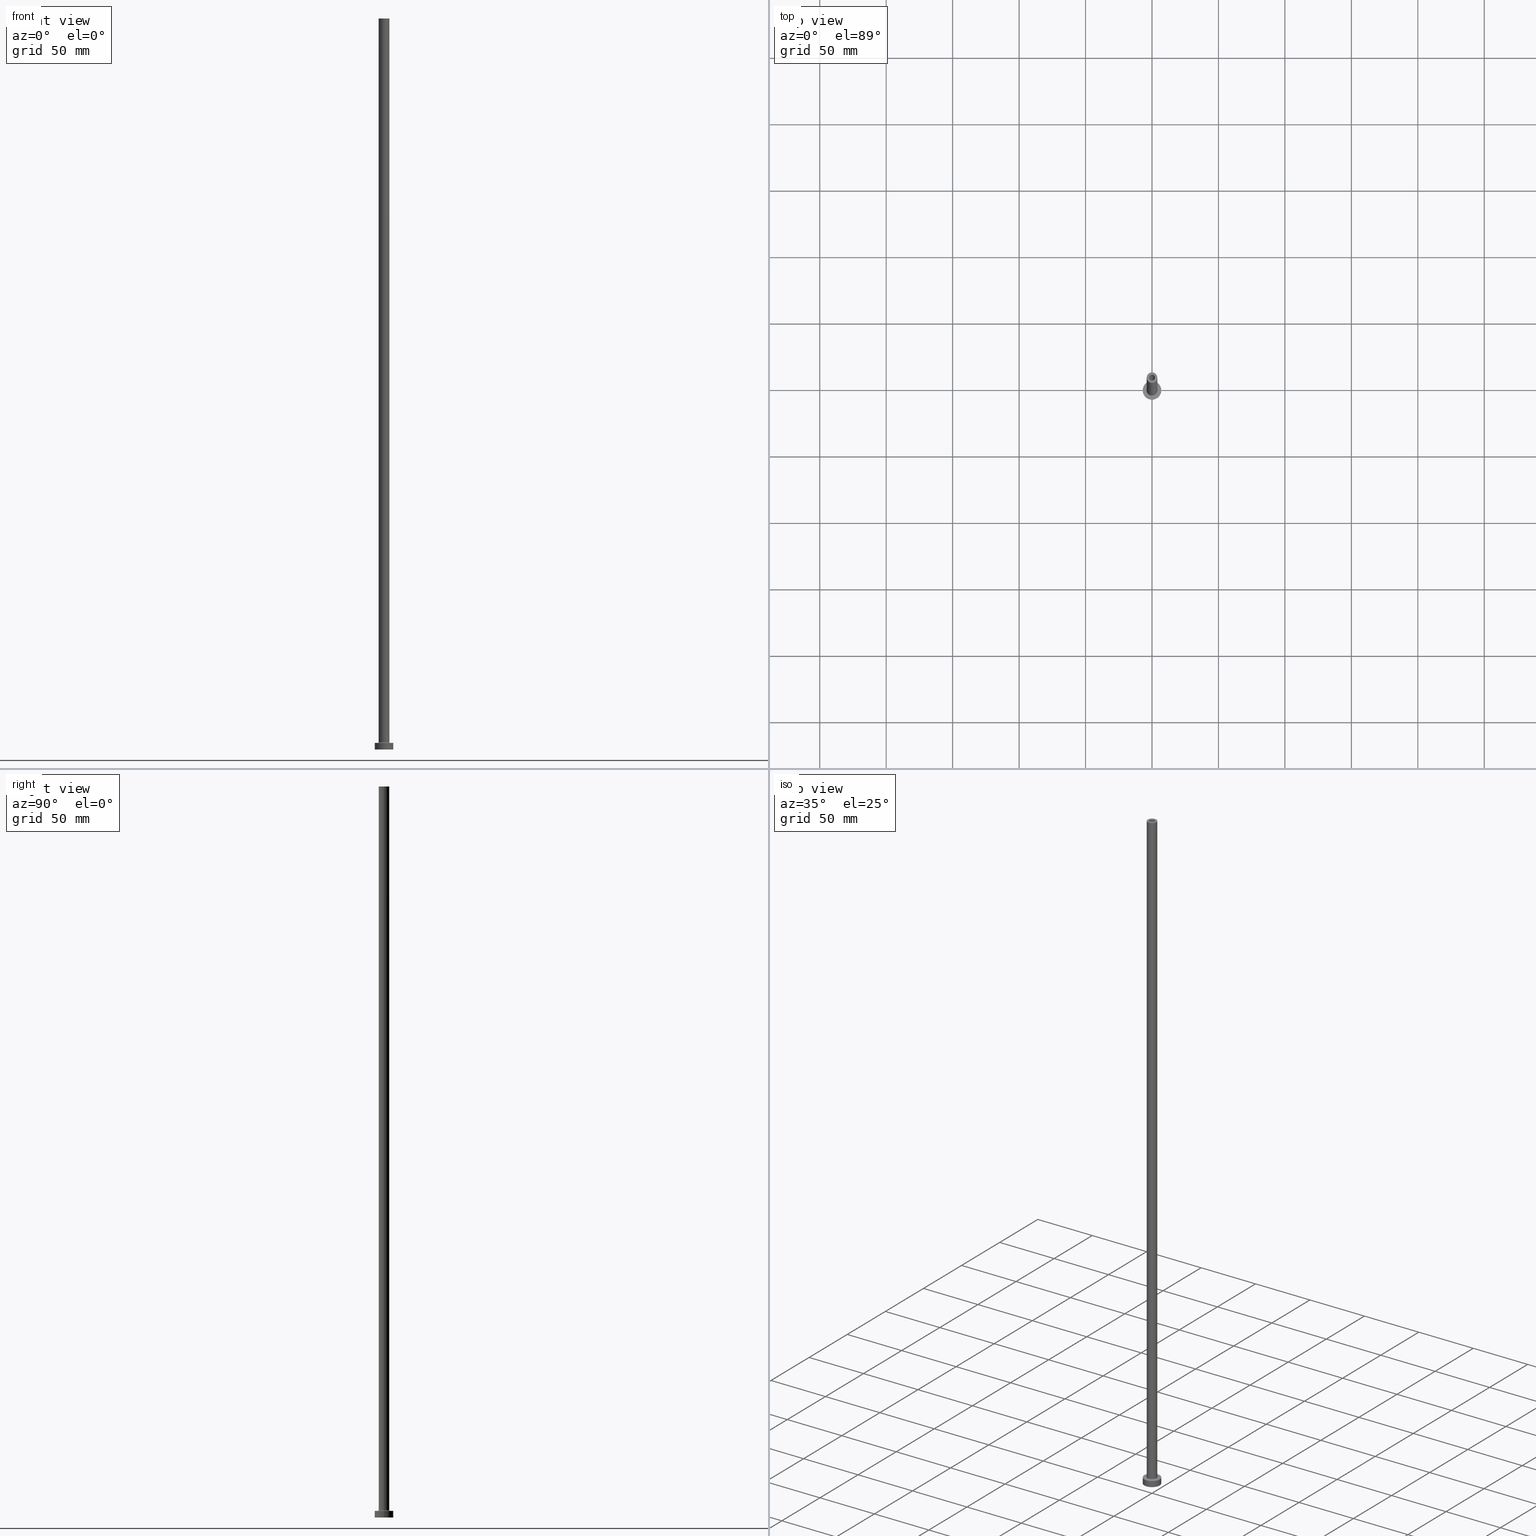
[diagram: canonical four-view strip — front | top / right | iso, engineering-drawing reading convention]
A machine part, canonical four-view strip (front | top / right | iso — engineering-drawing reading convention). The complete STEP part file that produces these views, byte-faithful:
ISO-10303-21;
HEADER;
FILE_DESCRIPTION (( 'STEP AP203' ),
    '1' );
FILE_NAME ('aa1b.STEP',
    '2023-02-13T17:20:26',
    ( '' ),
    ( '' ),
    'SwSTEP 2.0',
    'SolidWorks 2019',
    '' );
FILE_SCHEMA (( 'CONFIG_CONTROL_DESIGN' ));
ENDSEC;

DATA;
#1 = FACE_OUTER_BOUND ( 'NONE', #264, .T. ) ;
#2 = DATE_AND_TIME ( #321, #82 ) ;
#3 = DATE_AND_TIME ( #352, #405 ) ;
#4 = CARTESIAN_POINT ( 'NONE',  ( 0.000000000000000000, 0.000000000000000000, 550.0000000000000000 ) ) ;
#5 = CIRCLE ( 'NONE', #260, 4.500000000000000888 ) ;
#6 = CARTESIAN_POINT ( 'NONE',  ( 4.000000000000000000, 4.898587196589412829E-16, 550.0000000000000000 ) ) ;
#7 = EDGE_CURVE ( 'NONE', #402, #297, #342, .T. ) ;
#8 = PERSON_AND_ORGANIZATION_ROLE ( 'creator' ) ;
#9 = DIRECTION ( 'NONE',  ( -0.000000000000000000, -0.000000000000000000, -1.000000000000000000 ) ) ;
#10 = VERTEX_POINT ( 'NONE', #308 ) ;
#11 = DIRECTION ( 'NONE',  ( -1.000000000000000000, 0.000000000000000000, 0.000000000000000000 ) ) ;
#12 = AXIS2_PLACEMENT_3D ( 'NONE', #255, #399, #75 ) ;
#13 = ORIENTED_EDGE ( 'NONE', *, *, #57, .T. ) ;
#14 = AXIS2_PLACEMENT_3D ( 'NONE', #240, #304, #202 ) ;
#15 = CC_DESIGN_PERSON_AND_ORGANIZATION_ASSIGNMENT ( #214, #8, ( #66 ) ) ;
#16 = CYLINDRICAL_SURFACE ( 'NONE', #445, 2.250000000000000000 ) ;
#17 = VERTEX_POINT ( 'NONE', #58 ) ;
#18 = DIRECTION ( 'NONE',  ( 0.000000000000000000, 0.000000000000000000, 1.000000000000000000 ) ) ;
#19 = ORIENTED_EDGE ( 'NONE', *, *, #245, .F. ) ;
#20 = CARTESIAN_POINT ( 'NONE',  ( 2.399999999999999911, 2.939152317953647106E-16, 0.000000000000000000 ) ) ;
#21 = AXIS2_PLACEMENT_3D ( 'NONE', #162, #158, #408 ) ;
#22 = ORIENTED_EDGE ( 'NONE', *, *, #205, .F. ) ;
#23 = CC_DESIGN_DATE_AND_TIME_ASSIGNMENT ( #197, #381, ( #441 ) ) ;
#24 = ADVANCED_FACE ( 'NONE', ( #384 ), #63, .T. ) ;
#25 = ORIENTED_EDGE ( 'NONE', *, *, #375, .F. ) ;
#26 = ORIENTED_EDGE ( 'NONE', *, *, #102, .T. ) ;
#27 = CIRCLE ( 'NONE', #332, 2.399999999999999911 ) ;
#28 = CARTESIAN_POINT ( 'NONE',  ( 0.000000000000000000, 0.000000000000000000, 0.000000000000000000 ) ) ;
#29 = ORIENTED_EDGE ( 'NONE', *, *, #233, .F. ) ;
#30 = DIRECTION ( 'NONE',  ( -1.000000000000000000, 0.000000000000000000, 0.000000000000000000 ) ) ;
#31 = CC_DESIGN_SECURITY_CLASSIFICATION ( #441, ( #413 ) ) ;
#32 = AXIS2_PLACEMENT_3D ( 'NONE', #196, #203, #272 ) ;
#33 = COORDINATED_UNIVERSAL_TIME_OFFSET ( 1, 0, .AHEAD. ) ;
#34 = DESIGN_CONTEXT ( 'detailed design', #239, 'design' ) ;
#35 = CARTESIAN_POINT ( 'NONE',  ( -4.000000000000000000, 0.000000000000000000, 5.499999999999949374 ) ) ;
#36 = DIRECTION ( 'NONE',  ( -0.000000000000000000, -0.000000000000000000, -1.000000000000000000 ) ) ;
#37 = CC_DESIGN_APPROVAL ( #438, ( #413 ) ) ;
#38 = AXIS2_PLACEMENT_3D ( 'NONE', #133, #425, #135 ) ;
#39 = DIRECTION ( 'NONE',  ( 0.000000000000000000, 0.000000000000000000, -1.000000000000000000 ) ) ;
#40 = LINE ( 'NONE', #6, #418 ) ;
#41 = CARTESIAN_POINT ( 'NONE',  ( 7.000000000000000000, 8.572527594031473190E-16, 5.000000000000000000 ) ) ;
#42 = DIRECTION ( 'NONE',  ( -1.000000000000000000, 0.000000000000000000, 0.000000000000000000 ) ) ;
#43 = ORIENTED_EDGE ( 'NONE', *, *, #372, .T. ) ;
#44 = DIRECTION ( 'NONE',  ( 1.000000000000000000, 0.000000000000000000, 0.000000000000000000 ) ) ;
#45 = VERTEX_POINT ( 'NONE', #347 ) ;
#46 = CIRCLE ( 'NONE', #301, 2.250000000000000000 ) ;
#47 = CARTESIAN_POINT ( 'NONE',  ( -7.000000000000000000, 0.000000000000000000, 5.000000000000000000 ) ) ;
#48 = ORIENTED_EDGE ( 'NONE', *, *, #328, .F. ) ;
#49 = DIRECTION ( 'NONE',  ( 1.000000000000000000, 0.000000000000000000, 0.000000000000000000 ) ) ;
#50 = EDGE_CURVE ( 'NONE', #374, #315, #266, .T. ) ;
#51 = EDGE_LOOP ( 'NONE', ( #219, #194 ) ) ;
#52 = CIRCLE ( 'NONE', #167, 7.000000000000000000 ) ;
#53 = ADVANCED_FACE ( 'NONE', ( #175, #1 ), #288, .F. ) ;
#54 = FACE_BOUND ( 'NONE', #51, .T. ) ;
#55 = EDGE_LOOP ( 'NONE', ( #60, #407, #154, #400 ) ) ;
#56 = DIRECTION ( 'NONE',  ( 0.000000000000000000, 0.000000000000000000, 1.000000000000000000 ) ) ;
#57 = EDGE_CURVE ( 'NONE', #112, #315, #104, .T. ) ;
#58 = CARTESIAN_POINT ( 'NONE',  ( 4.500000000000000888, 0.000000000000000000, 4.999999999999975131 ) ) ;
#59 = PLANE ( 'NONE',  #21 ) ;
#60 = ORIENTED_EDGE ( 'NONE', *, *, #7, .F. ) ;
#61 = PERSON_AND_ORGANIZATION ( #89, #215 ) ;
#62 = CARTESIAN_POINT ( 'NONE',  ( -2.399999999999999911, 0.000000000000000000, 0.000000000000000000 ) ) ;
#63 = CYLINDRICAL_SURFACE ( 'NONE', #32, 7.000000000000000000 ) ;
#64 = EDGE_CURVE ( 'NONE', #455, #93, #341, .T. ) ;
#65 = DIRECTION ( 'NONE',  ( 1.000000000000000000, 0.000000000000000000, 0.000000000000000000 ) ) ;
#66 = PRODUCT_DEFINITION ( 'NEZN�M�', '', #413, #34 ) ;
#67 = CARTESIAN_POINT ( 'NONE',  ( 0.000000000000000000, 0.000000000000000000, 5.499999999999949374 ) ) ;
#68 = AXIS2_PLACEMENT_3D ( 'NONE', #118, #155, #30 ) ;
#69 = CYLINDRICAL_SURFACE ( 'NONE', #165, 2.250000000000000000 ) ;
#70 = APPROVAL_ROLE ( '' ) ;
#71 = ADVANCED_FACE ( 'NONE', ( #317 ), #393, .F. ) ;
#72 = CARTESIAN_POINT ( 'NONE',  ( 4.000000000000000000, 4.898587196589412829E-16, 550.0000000000000000 ) ) ;
#73 = CIRCLE ( 'NONE', #188, 7.000000000000000000 ) ;
#74 = DIRECTION ( 'NONE',  ( 0.000000000000000000, 0.000000000000000000, 1.000000000000000000 ) ) ;
#75 = DIRECTION ( 'NONE',  ( -1.000000000000000000, 1.224646799147351482E-16, 0.000000000000000000 ) ) ;
#76 = DIRECTION ( 'NONE',  ( 1.000000000000000000, 0.000000000000000000, 0.000000000000000000 ) ) ;
#77 = DIRECTION ( 'NONE',  ( 0.000000000000000000, 0.000000000000000000, 1.000000000000000000 ) ) ;
#78 = EDGE_CURVE ( 'NONE', #340, #98, #319, .T. ) ;
#79 = ORIENTED_EDGE ( 'NONE', *, *, #262, .T. ) ;
#80 = CARTESIAN_POINT ( 'NONE',  ( 2.250000000000000000, 2.755455298081544285E-16, 505.0000000000000000 ) ) ;
#81 = VERTEX_POINT ( 'NONE', #72 ) ;
#82 = LOCAL_TIME ( 18, 20, 26.00000000000000000, #170 ) ;
#83 = DIRECTION ( 'NONE',  ( 1.000000000000000000, 0.000000000000000000, 0.000000000000000000 ) ) ;
#84 = ORIENTED_EDGE ( 'NONE', *, *, #289, .F. ) ;
#85 = APPROVAL ( #217, 'NEUR�EN�' ) ;
#86 = CARTESIAN_POINT ( 'NONE',  ( -4.500000000000000888, 5.510910596163088569E-16, 4.999999999999975131 ) ) ;
#87 = ORIENTED_EDGE ( 'NONE', *, *, #176, .F. ) ;
#88 = DIRECTION ( 'NONE',  ( 0.000000000000000000, 0.000000000000000000, 1.000000000000000000 ) ) ;
#89 = PERSON ( 'NEUR�EN�', 'NEUR�EN�', 'NEUR�EN�', ('NEUR�EN�'), ('NEUR�EN�'), ('NEUR�EN�') ) ;
#90 = ORIENTED_EDGE ( 'NONE', *, *, #192, .T. ) ;
#91 = AXIS2_PLACEMENT_3D ( 'NONE', #67, #350, #252 ) ;
#92 = ORIENTED_EDGE ( 'NONE', *, *, #367, .F. ) ;
#93 = VERTEX_POINT ( 'NONE', #248 ) ;
#94 = AXIS2_PLACEMENT_3D ( 'NONE', #391, #36, #279 ) ;
#95 = APPROVAL_DATE_TIME ( #458, #169 ) ;
#96 = FACE_OUTER_BOUND ( 'NONE', #148, .T. ) ;
#97 = VERTEX_POINT ( 'NONE', #431 ) ;
#98 = VERTEX_POINT ( 'NONE', #35 ) ;
#99 = DIRECTION ( 'NONE',  ( 0.000000000000000000, 0.000000000000000000, -1.000000000000000000 ) ) ;
#100 = CALENDAR_DATE ( 2023, 13, 2 ) ;
#101 = DIRECTION ( 'NONE',  ( -0.000000000000000000, -0.000000000000000000, -1.000000000000000000 ) ) ;
#102 = EDGE_CURVE ( 'NONE', #183, #374, #166, .T. ) ;
#103 = AXIS2_PLACEMENT_3D ( 'NONE', #336, #291, #226 ) ;
#104 = LINE ( 'NONE', #320, #355 ) ;
#105 = CYLINDRICAL_SURFACE ( 'NONE', #323, 4.000000000000000000 ) ;
#106 = EDGE_CURVE ( 'NONE', #81, #45, #40, .T. ) ;
#107 = PERSON_AND_ORGANIZATION_ROLE ( 'classification_officer' ) ;
#108 = FACE_OUTER_BOUND ( 'NONE', #161, .T. ) ;
#109 = ADVANCED_FACE ( 'NONE', ( #108 ), #69, .F. ) ;
#110 = DIRECTION ( 'NONE',  ( -0.000000000000000000, -0.000000000000000000, -1.000000000000000000 ) ) ;
#111 = DIRECTION ( 'NONE',  ( 0.000000000000000000, 0.000000000000000000, 1.000000000000000000 ) ) ;
#112 = VERTEX_POINT ( 'NONE', #254 ) ;
#113 = LINE ( 'NONE', #41, #141 ) ;
#114 = CIRCLE ( 'NONE', #103, 4.000000000000000000 ) ;
#115 = FACE_OUTER_BOUND ( 'NONE', #186, .T. ) ;
#116 = ORIENTED_EDGE ( 'NONE', *, *, #64, .T. ) ;
#117 = MANIFOLD_SOLID_BREP ( 'Odebrat vysunut�m4', #379 ) ;
#118 = CARTESIAN_POINT ( 'NONE',  ( 0.000000000000000000, 0.000000000000000000, 5.000000000000000000 ) ) ;
#119 = ORIENTED_EDGE ( 'NONE', *, *, #78, .T. ) ;
#120 = CC_DESIGN_APPROVAL ( #169, ( #441 ) ) ;
#121 = AXIS2_PLACEMENT_3D ( 'NONE', #130, #357, #280 ) ;
#122 =( NAMED_UNIT ( * ) PLANE_ANGLE_UNIT ( ) SI_UNIT ( $, .RADIAN. ) );
#123 = ORIENTED_EDGE ( 'NONE', *, *, #328, .T. ) ;
#124 = CIRCLE ( 'NONE', #231, 4.000000000000000000 ) ;
#125 = ADVANCED_BREP_SHAPE_REPRESENTATION ( 'aa1b', ( #117, #435 ), #207 ) ;
#126 = ORIENTED_EDGE ( 'NONE', *, *, #205, .T. ) ;
#127 = FACE_OUTER_BOUND ( 'NONE', #331, .T. ) ;
#128 = ORIENTED_EDGE ( 'NONE', *, *, #195, .T. ) ;
#129 = EDGE_LOOP ( 'NONE', ( #237, #159, #119, #437 ) ) ;
#130 = CARTESIAN_POINT ( 'NONE',  ( 0.000000000000000000, 0.000000000000000000, 0.000000000000000000 ) ) ;
#131 = CC_DESIGN_DATE_AND_TIME_ASSIGNMENT ( #284, #390, ( #66 ) ) ;
#132 = APPROVAL_DATE_TIME ( #2, #85 ) ;
#133 = CARTESIAN_POINT ( 'NONE',  ( 0.000000000000000000, 0.000000000000000000, 0.000000000000000000 ) ) ;
#134 = APPROVAL_PERSON_ORGANIZATION ( #325, #438, #70 ) ;
#135 = DIRECTION ( 'NONE',  ( 1.000000000000000000, 0.000000000000000000, 0.000000000000000000 ) ) ;
#136 = PERSON_AND_ORGANIZATION_ROLE ( 'design_owner' ) ;
#137 = CARTESIAN_POINT ( 'NONE',  ( 0.000000000000000000, 0.000000000000000000, 550.0000000000000000 ) ) ;
#138 = CC_DESIGN_PERSON_AND_ORGANIZATION_ASSIGNMENT ( #359, #136, ( #456 ) ) ;
#139 = MECHANICAL_CONTEXT ( 'NONE', #424, 'mechanical' ) ;
#140 = CARTESIAN_POINT ( 'NONE',  ( 0.000000000000000000, 0.000000000000000000, 5.499999999999949374 ) ) ;
#141 = VECTOR ( 'NONE', #9, 1000.000000000000000 ) ;
#142 = APPROVAL_PERSON_ORGANIZATION ( #398, #85, #327 ) ;
#143 = FACE_OUTER_BOUND ( 'NONE', #129, .T. ) ;
#144 = EDGE_LOOP ( 'NONE', ( #79, #13, #267, #411 ) ) ;
#145 = DIRECTION ( 'NONE',  ( 0.000000000000000000, 0.000000000000000000, -1.000000000000000000 ) ) ;
#146 = CARTESIAN_POINT ( 'NONE',  ( -2.399999999999999911, 0.000000000000000000, 505.0000000000000000 ) ) ;
#147 = VECTOR ( 'NONE', #388, 1000.000000000000000 ) ;
#148 = EDGE_LOOP ( 'NONE', ( #420, #434 ) ) ;
#149 = DIRECTION ( 'NONE',  ( 0.000000000000000000, 0.000000000000000000, 1.000000000000000000 ) ) ;
#150 = ORIENTED_EDGE ( 'NONE', *, *, #57, .F. ) ;
#151 = CIRCLE ( 'NONE', #451, 2.399999999999999911 ) ;
#152 = PLANE ( 'NONE',  #14 ) ;
#153 = EDGE_CURVE ( 'NONE', #10, #313, #73, .T. ) ;
#154 = ORIENTED_EDGE ( 'NONE', *, *, #164, .T. ) ;
#155 = DIRECTION ( 'NONE',  ( -0.000000000000000000, -0.000000000000000000, -1.000000000000000000 ) ) ;
#156 = CARTESIAN_POINT ( 'NONE',  ( 2.250000000000000000, 2.755455298081544285E-16, 550.0000000000000000 ) ) ;
#157 = ADVANCED_FACE ( 'NONE', ( #353 ), #105, .T. ) ;
#158 = DIRECTION ( 'NONE',  ( 0.000000000000000000, 0.000000000000000000, 1.000000000000000000 ) ) ;
#159 = ORIENTED_EDGE ( 'NONE', *, *, #421, .F. ) ;
#160 = CIRCLE ( 'NONE', #174, 4.000000000000000000 ) ;
#161 = EDGE_LOOP ( 'NONE', ( #404, #191, #448, #180 ) ) ;
#162 = CARTESIAN_POINT ( 'NONE',  ( 0.000000000000000000, 0.000000000000000000, 550.0000000000000000 ) ) ;
#163 = CC_DESIGN_PERSON_AND_ORGANIZATION_ASSIGNMENT ( #173, #107, ( #441 ) ) ;
#164 = EDGE_CURVE ( 'NONE', #97, #292, #208, .T. ) ;
#165 = AXIS2_PLACEMENT_3D ( 'NONE', #137, #39, #285 ) ;
#166 = LINE ( 'NONE', #282, #147 ) ;
#167 = AXIS2_PLACEMENT_3D ( 'NONE', #406, #396, #442 ) ;
#168 = DIRECTION ( 'NONE',  ( 0.000000000000000000, 0.000000000000000000, -1.000000000000000000 ) ) ;
#169 = APPROVAL ( #318, 'NEUR�EN�' ) ;
#170 = COORDINATED_UNIVERSAL_TIME_OFFSET ( 1, 0, .AHEAD. ) ;
#171 = CARTESIAN_POINT ( 'NONE',  ( -2.250000000000000000, 0.000000000000000000, 550.0000000000000000 ) ) ;
#172 = ADVANCED_FACE ( 'NONE', ( #246 ), #444, .F. ) ;
#173 = PERSON_AND_ORGANIZATION ( #89, #215 ) ;
#174 = AXIS2_PLACEMENT_3D ( 'NONE', #382, #376, #273 ) ;
#175 = FACE_BOUND ( 'NONE', #453, .T. ) ;
#176 = EDGE_CURVE ( 'NONE', #402, #97, #242, .T. ) ;
#177 = DIRECTION ( 'NONE',  ( 1.000000000000000000, 0.000000000000000000, 0.000000000000000000 ) ) ;
#178 = LOCAL_TIME ( 18, 20, 26.00000000000000000, #316 ) ;
#179 = DIRECTION ( 'NONE',  ( 0.000000000000000000, 0.000000000000000000, 1.000000000000000000 ) ) ;
#180 = ORIENTED_EDGE ( 'NONE', *, *, #164, .F. ) ;
#181 = AXIS2_PLACEMENT_3D ( 'NONE', #193, #236, #346 ) ;
#182 = CARTESIAN_POINT ( 'NONE',  ( 0.000000000000000000, 0.000000000000000000, 505.0000000000000000 ) ) ;
#183 = VERTEX_POINT ( 'NONE', #146 ) ;
#184 = CC_DESIGN_PERSON_AND_ORGANIZATION_ASSIGNMENT ( #253, #356, ( #413 ) ) ;
#185 = CARTESIAN_POINT ( 'NONE',  ( -7.000000000000000000, 0.000000000000000000, 5.000000000000000000 ) ) ;
#186 = EDGE_LOOP ( 'NONE', ( #150, #43, #26, #241 ) ) ;
#187 = DIRECTION ( 'NONE',  ( 0.000000000000000000, 0.000000000000000000, -1.000000000000000000 ) ) ;
#188 = AXIS2_PLACEMENT_3D ( 'NONE', #211, #322, #65 ) ;
#189 = EDGE_LOOP ( 'NONE', ( #84, #416, #303, #295 ) ) ;
#190 =( LENGTH_UNIT ( ) NAMED_UNIT ( * ) SI_UNIT ( .MILLI., .METRE. ) );
#191 = ORIENTED_EDGE ( 'NONE', *, *, #7, .T. ) ;
#192 = EDGE_CURVE ( 'NONE', #292, #297, #277, .T. ) ;
#193 = CARTESIAN_POINT ( 'NONE',  ( 0.000000000000000000, 0.000000000000000000, 505.0000000000000000 ) ) ;
#194 = ORIENTED_EDGE ( 'NONE', *, *, #367, .T. ) ;
#195 = EDGE_CURVE ( 'NONE', #45, #17, #337, .T. ) ;
#196 = CARTESIAN_POINT ( 'NONE',  ( 0.000000000000000000, 0.000000000000000000, 5.000000000000000000 ) ) ;
#197 = DATE_AND_TIME ( #386, #178 ) ;
#198 = DIRECTION ( 'NONE',  ( 0.000000000000000000, 0.000000000000000000, 1.000000000000000000 ) ) ;
#199 = ORIENTED_EDGE ( 'NONE', *, *, #461, .T. ) ;
#200 = AXIS2_PLACEMENT_3D ( 'NONE', #263, #198, #265 ) ;
#201 = PRODUCT_DEFINITION_SHAPE ( 'NONE', 'NONE',  #66 ) ;
#202 = DIRECTION ( 'NONE',  ( 1.000000000000000000, 0.000000000000000000, -0.000000000000000000 ) ) ;
#203 = DIRECTION ( 'NONE',  ( -0.000000000000000000, -0.000000000000000000, -1.000000000000000000 ) ) ;
#204 = CARTESIAN_POINT ( 'NONE',  ( -4.000000000000000000, 0.000000000000000000, 550.0000000000000000 ) ) ;
#205 = EDGE_CURVE ( 'NONE', #313, #10, #52, .T. ) ;
#206 = CIRCLE ( 'NONE', #370, 4.000000000000000000 ) ;
#207 =( GEOMETRIC_REPRESENTATION_CONTEXT ( 3 ) GLOBAL_UNCERTAINTY_ASSIGNED_CONTEXT ( ( #385 ) ) GLOBAL_UNIT_ASSIGNED_CONTEXT ( ( #190, #122, #268 ) ) REPRESENTATION_CONTEXT ( 'NONE', 'WORKASPACE' ) );
#208 = LINE ( 'NONE', #171, #259 ) ;
#209 = EDGE_CURVE ( 'NONE', #45, #98, #206, .T. ) ;
#210 = COORDINATED_UNIVERSAL_TIME_OFFSET ( 1, 0, .AHEAD. ) ;
#211 = CARTESIAN_POINT ( 'NONE',  ( 0.000000000000000000, 0.000000000000000000, 5.000000000000000000 ) ) ;
#212 = PERSON_AND_ORGANIZATION_ROLE ( 'creator' ) ;
#213 = DIRECTION ( 'NONE',  ( 1.000000000000000000, 0.000000000000000000, 0.000000000000000000 ) ) ;
#214 = PERSON_AND_ORGANIZATION ( #89, #215 ) ;
#215 = ORGANIZATION ( 'NEUR�EN�', 'NEUR�EN�', '' ) ;
#216 = CARTESIAN_POINT ( 'NONE',  ( 0.000000000000000000, 0.000000000000000000, 5.000000000000000000 ) ) ;
#217 = APPROVAL_STATUS ( 'not_yet_approved' ) ;
#218 = CARTESIAN_POINT ( 'NONE',  ( -2.250000000000000000, 0.000000000000000000, 505.0000000000000000 ) ) ;
#219 = ORIENTED_EDGE ( 'NONE', *, *, #247, .T. ) ;
#220 = CARTESIAN_POINT ( 'NONE',  ( 0.000000000000000000, 0.000000000000000000, 5.499999999999949374 ) ) ;
#221 = ORIENTED_EDGE ( 'NONE', *, *, #306, .T. ) ;
#222 = CIRCLE ( 'NONE', #243, 2.399999999999999911 ) ;
#223 = CARTESIAN_POINT ( 'NONE',  ( 0.000000000000000000, 0.000000000000000000, 5.000000000000000000 ) ) ;
#224 = ORIENTED_EDGE ( 'NONE', *, *, #106, .T. ) ;
#225 = PRODUCT_RELATED_PRODUCT_CATEGORY ( 'detail', '', ( #456 ) ) ;
#226 = DIRECTION ( 'NONE',  ( 1.000000000000000000, 0.000000000000000000, 0.000000000000000000 ) ) ;
#227 = EDGE_LOOP ( 'NONE', ( #305, #87 ) ) ;
#228 = CARTESIAN_POINT ( 'NONE',  ( -7.000000000000000000, 0.000000000000000000, 0.000000000000000000 ) ) ;
#229 = EDGE_LOOP ( 'NONE', ( #126, #235 ) ) ;
#230 = DIRECTION ( 'NONE',  ( 1.000000000000000000, 0.000000000000000000, 0.000000000000000000 ) ) ;
#231 = AXIS2_PLACEMENT_3D ( 'NONE', #220, #111, #83 ) ;
#232 = ORIENTED_EDGE ( 'NONE', *, *, #421, .T. ) ;
#233 = EDGE_CURVE ( 'NONE', #10, #93, #113, .T. ) ;
#234 = CYLINDRICAL_SURFACE ( 'NONE', #68, 7.000000000000000000 ) ;
#235 = ORIENTED_EDGE ( 'NONE', *, *, #153, .T. ) ;
#236 = DIRECTION ( 'NONE',  ( 0.000000000000000000, 0.000000000000000000, 1.000000000000000000 ) ) ;
#237 = ORIENTED_EDGE ( 'NONE', *, *, #106, .F. ) ;
#238 = VECTOR ( 'NONE', #101, 1000.000000000000000 ) ;
#239 = APPLICATION_CONTEXT ( 'configuration controlled 3d designs of mechanical parts and assemblies' ) ;
#240 = CARTESIAN_POINT ( 'NONE',  ( 0.000000000000000000, 0.000000000000000000, 5.000000000000000000 ) ) ;
#241 = ORIENTED_EDGE ( 'NONE', *, *, #50, .T. ) ;
#242 = CIRCLE ( 'NONE', #300, 2.250000000000000000 ) ;
#243 = AXIS2_PLACEMENT_3D ( 'NONE', #182, #449, #373 ) ;
#244 = ORIENTED_EDGE ( 'NONE', *, *, #209, .F. ) ;
#245 = EDGE_CURVE ( 'NONE', #98, #450, #412, .T. ) ;
#246 = FACE_OUTER_BOUND ( 'NONE', #440, .T. ) ;
#247 = EDGE_CURVE ( 'NONE', #17, #450, #5, .T. ) ;
#248 = CARTESIAN_POINT ( 'NONE',  ( 7.000000000000000000, 8.572527594031473190E-16, 0.000000000000000000 ) ) ;
#249 = AXIS2_PLACEMENT_3D ( 'NONE', #28, #88, #230 ) ;
#250 = DIRECTION ( 'NONE',  ( -0.000000000000000000, -0.000000000000000000, -1.000000000000000000 ) ) ;
#251 = APPROVAL_DATE_TIME ( #3, #438 ) ;
#252 = DIRECTION ( 'NONE',  ( 1.000000000000000000, 0.000000000000000000, 0.000000000000000000 ) ) ;
#253 = PERSON_AND_ORGANIZATION ( #89, #215 ) ;
#254 = CARTESIAN_POINT ( 'NONE',  ( 2.399999999999999911, 2.939152317953647106E-16, 505.0000000000000000 ) ) ;
#255 = CARTESIAN_POINT ( 'NONE',  ( -4.500000000000000888, 5.510910596163089556E-16, 5.499999999999949374 ) ) ;
#256 = ORIENTED_EDGE ( 'NONE', *, *, #50, .F. ) ;
#257 = LINE ( 'NONE', #185, #389 ) ;
#258 = CARTESIAN_POINT ( 'NONE',  ( 0.000000000000000000, 0.000000000000000000, 550.0000000000000000 ) ) ;
#259 = VECTOR ( 'NONE', #99, 1000.000000000000000 ) ;
#260 = AXIS2_PLACEMENT_3D ( 'NONE', #223, #110, #177 ) ;
#261 = CYLINDRICAL_SURFACE ( 'NONE', #324, 4.000000000000000000 ) ;
#262 = EDGE_CURVE ( 'NONE', #183, #112, #27, .T. ) ;
#263 = CARTESIAN_POINT ( 'NONE',  ( 0.000000000000000000, 0.000000000000000000, 550.0000000000000000 ) ) ;
#264 = EDGE_LOOP ( 'NONE', ( #311, #25 ) ) ;
#265 = DIRECTION ( 'NONE',  ( 1.000000000000000000, 0.000000000000000000, 0.000000000000000000 ) ) ;
#266 = CIRCLE ( 'NONE', #94, 2.399999999999999911 ) ;
#267 = ORIENTED_EDGE ( 'NONE', *, *, #432, .T. ) ;
#268 =( NAMED_UNIT ( * ) SI_UNIT ( $, .STERADIAN. ) SOLID_ANGLE_UNIT ( ) );
#269 = CIRCLE ( 'NONE', #200, 2.250000000000000000 ) ;
#270 = EDGE_LOOP ( 'NONE', ( #380, #338, #419, #48 ) ) ;
#271 = CC_DESIGN_PERSON_AND_ORGANIZATION_ASSIGNMENT ( #392, #212, ( #413 ) ) ;
#272 = DIRECTION ( 'NONE',  ( -1.000000000000000000, 0.000000000000000000, 0.000000000000000000 ) ) ;
#273 = DIRECTION ( 'NONE',  ( 1.000000000000000000, 0.000000000000000000, 0.000000000000000000 ) ) ;
#274 = EDGE_LOOP ( 'NONE', ( #90, #199 ) ) ;
#275 = APPROVAL_PERSON_ORGANIZATION ( #61, #169, #348 ) ;
#276 = ADVANCED_FACE ( 'NONE', ( #401 ), #278, .F. ) ;
#277 = CIRCLE ( 'NONE', #371, 2.250000000000000000 ) ;
#278 = TOROIDAL_SURFACE ( 'NONE', #310, 4.500000000000000888, 0.5000000000000000000 ) ;
#279 = DIRECTION ( 'NONE',  ( 1.000000000000000000, 0.000000000000000000, 0.000000000000000000 ) ) ;
#280 = DIRECTION ( 'NONE',  ( 1.000000000000000000, 0.000000000000000000, -0.000000000000000000 ) ) ;
#281 = APPROVAL_STATUS ( 'not_yet_approved' ) ;
#282 = CARTESIAN_POINT ( 'NONE',  ( -2.399999999999999911, 0.000000000000000000, 511.7882250993908997 ) ) ;
#283 = AXIS2_PLACEMENT_3D ( 'NONE', #216, #361, #44 ) ;
#284 = DATE_AND_TIME ( #426, #343 ) ;
#285 = DIRECTION ( 'NONE',  ( -1.000000000000000000, 0.000000000000000000, 0.000000000000000000 ) ) ;
#286 = ADVANCED_FACE ( 'NONE', ( #143 ), #261, .T. ) ;
#287 = APPLICATION_PROTOCOL_DEFINITION ( 'international standard', 'config_control_design', 1994, #239 ) ;
#288 = PLANE ( 'NONE',  #121 ) ;
#289 = EDGE_CURVE ( 'NONE', #98, #45, #124, .T. ) ;
#290 = COORDINATED_UNIVERSAL_TIME_OFFSET ( 1, 0, .AHEAD. ) ;
#291 = DIRECTION ( 'NONE',  ( 0.000000000000000000, 0.000000000000000000, 1.000000000000000000 ) ) ;
#292 = VERTEX_POINT ( 'NONE', #218 ) ;
#293 = ADVANCED_FACE ( 'NONE', ( #403 ), #16, .F. ) ;
#294 = CARTESIAN_POINT ( 'NONE',  ( 0.000000000000000000, 0.000000000000000000, 505.0000000000000000 ) ) ;
#295 = ORIENTED_EDGE ( 'NONE', *, *, #195, .F. ) ;
#296 = CARTESIAN_POINT ( 'NONE',  ( 0.000000000000000000, 0.000000000000000000, 550.0000000000000000 ) ) ;
#297 = VERTEX_POINT ( 'NONE', #80 ) ;
#298 = AXIS2_PLACEMENT_3D ( 'NONE', #427, #429, #326 ) ;
#299 = DIRECTION ( 'NONE',  ( 0.000000000000000000, -1.000000000000000000, 0.000000000000000000 ) ) ;
#300 = AXIS2_PLACEMENT_3D ( 'NONE', #4, #74, #213 ) ;
#301 = AXIS2_PLACEMENT_3D ( 'NONE', #452, #56, #369 ) ;
#302 = CARTESIAN_POINT ( 'NONE',  ( 0.000000000000000000, 0.000000000000000000, 511.7882250993908997 ) ) ;
#303 = ORIENTED_EDGE ( 'NONE', *, *, #247, .F. ) ;
#304 = DIRECTION ( 'NONE',  ( 0.000000000000000000, 0.000000000000000000, 1.000000000000000000 ) ) ;
#305 = ORIENTED_EDGE ( 'NONE', *, *, #397, .F. ) ;
#306 = EDGE_CURVE ( 'NONE', #81, #340, #114, .T. ) ;
#307 = PLANE ( 'NONE',  #181 ) ;
#308 = CARTESIAN_POINT ( 'NONE',  ( 7.000000000000000000, 8.572527594031473190E-16, 5.000000000000000000 ) ) ;
#309 = DIRECTION ( 'NONE',  ( -0.000000000000000000, -0.000000000000000000, -1.000000000000000000 ) ) ;
#310 = AXIS2_PLACEMENT_3D ( 'NONE', #140, #77, #333 ) ;
#311 = ORIENTED_EDGE ( 'NONE', *, *, #64, .F. ) ;
#312 = CARTESIAN_POINT ( 'NONE',  ( 0.000000000000000000, 0.000000000000000000, 0.000000000000000000 ) ) ;
#313 = VERTEX_POINT ( 'NONE', #47 ) ;
#314 = CARTESIAN_POINT ( 'NONE',  ( 0.000000000000000000, 0.000000000000000000, 0.000000000000000000 ) ) ;
#315 = VERTEX_POINT ( 'NONE', #20 ) ;
#316 = COORDINATED_UNIVERSAL_TIME_OFFSET ( 1, 0, .AHEAD. ) ;
#317 = FACE_OUTER_BOUND ( 'NONE', #144, .T. ) ;
#318 = APPROVAL_STATUS ( 'not_yet_approved' ) ;
#319 = LINE ( 'NONE', #204, #238 ) ;
#320 = CARTESIAN_POINT ( 'NONE',  ( 2.399999999999999911, 2.939152317953647106E-16, 511.7882250993908997 ) ) ;
#321 = CALENDAR_DATE ( 2023, 13, 2 ) ;
#322 = DIRECTION ( 'NONE',  ( 0.000000000000000000, 0.000000000000000000, 1.000000000000000000 ) ) ;
#323 = AXIS2_PLACEMENT_3D ( 'NONE', #349, #250, #423 ) ;
#324 = AXIS2_PLACEMENT_3D ( 'NONE', #296, #366, #439 ) ;
#325 = PERSON_AND_ORGANIZATION ( #89, #215 ) ;
#326 = DIRECTION ( 'NONE',  ( -1.000000000000000000, 0.000000000000000000, 0.000000000000000000 ) ) ;
#327 = APPROVAL_ROLE ( '' ) ;
#328 = EDGE_CURVE ( 'NONE', #313, #455, #257, .T. ) ;
#329 = CARTESIAN_POINT ( 'NONE',  ( 4.500000000000000888, 0.000000000000000000, 5.499999999999949374 ) ) ;
#330 = CARTESIAN_POINT ( 'NONE',  ( 0.000000000000000000, 0.000000000000000000, 505.0000000000000000 ) ) ;
#331 = EDGE_LOOP ( 'NONE', ( #29, #22, #123, #116 ) ) ;
#332 = AXIS2_PLACEMENT_3D ( 'NONE', #330, #149, #446 ) ;
#333 = DIRECTION ( 'NONE',  ( 1.000000000000000000, 0.000000000000000000, 0.000000000000000000 ) ) ;
#334 = CYLINDRICAL_SURFACE ( 'NONE', #365, 2.399999999999999911 ) ;
#335 = ORIENTED_EDGE ( 'NONE', *, *, #432, .F. ) ;
#336 = CARTESIAN_POINT ( 'NONE',  ( 0.000000000000000000, 0.000000000000000000, 550.0000000000000000 ) ) ;
#337 = CIRCLE ( 'NONE', #459, 0.5000000000000004441 ) ;
#338 = ORIENTED_EDGE ( 'NONE', *, *, #233, .T. ) ;
#339 = FACE_OUTER_BOUND ( 'NONE', #409, .T. ) ;
#340 = VERTEX_POINT ( 'NONE', #363 ) ;
#341 = CIRCLE ( 'NONE', #38, 7.000000000000000000 ) ;
#342 = LINE ( 'NONE', #156, #395 ) ;
#343 = LOCAL_TIME ( 18, 20, 26.00000000000000000, #290 ) ;
#344 = ORIENTED_EDGE ( 'NONE', *, *, #209, .T. ) ;
#345 = ADVANCED_FACE ( 'NONE', ( #115 ), #334, .F. ) ;
#346 = DIRECTION ( 'NONE',  ( 1.000000000000000000, 0.000000000000000000, -0.000000000000000000 ) ) ;
#347 = CARTESIAN_POINT ( 'NONE',  ( 4.000000000000000000, 4.898587196589412829E-16, 5.499999999999949374 ) ) ;
#348 = APPROVAL_ROLE ( '' ) ;
#349 = CARTESIAN_POINT ( 'NONE',  ( 0.000000000000000000, 0.000000000000000000, 550.0000000000000000 ) ) ;
#350 = DIRECTION ( 'NONE',  ( 0.000000000000000000, 0.000000000000000000, 1.000000000000000000 ) ) ;
#351 = CC_DESIGN_APPROVAL ( #85, ( #66 ) ) ;
#352 = CALENDAR_DATE ( 2023, 13, 2 ) ;
#353 = FACE_OUTER_BOUND ( 'NONE', #415, .T. ) ;
#354 = LOCAL_TIME ( 18, 20, 26.00000000000000000, #33 ) ;
#355 = VECTOR ( 'NONE', #168, 1000.000000000000000 ) ;
#356 = PERSON_AND_ORGANIZATION_ROLE ( 'design_supplier' ) ;
#357 = DIRECTION ( 'NONE',  ( 0.000000000000000000, 0.000000000000000000, 1.000000000000000000 ) ) ;
#358 = CIRCLE ( 'NONE', #249, 7.000000000000000000 ) ;
#359 = PERSON_AND_ORGANIZATION ( #89, #215 ) ;
#360 = DIRECTION ( 'NONE',  ( 1.000000000000000000, 0.000000000000000000, 0.000000000000000000 ) ) ;
#361 = DIRECTION ( 'NONE',  ( -0.000000000000000000, -0.000000000000000000, -1.000000000000000000 ) ) ;
#362 = ORIENTED_EDGE ( 'NONE', *, *, #78, .F. ) ;
#363 = CARTESIAN_POINT ( 'NONE',  ( -4.000000000000000000, 0.000000000000000000, 550.0000000000000000 ) ) ;
#364 = ORIENTED_EDGE ( 'NONE', *, *, #306, .F. ) ;
#365 = AXIS2_PLACEMENT_3D ( 'NONE', #302, #433, #11 ) ;
#366 = DIRECTION ( 'NONE',  ( -0.000000000000000000, -0.000000000000000000, -1.000000000000000000 ) ) ;
#367 = EDGE_CURVE ( 'NONE', #450, #17, #383, .T. ) ;
#368 = DIRECTION ( 'NONE',  ( -0.000000000000000000, -0.000000000000000000, -1.000000000000000000 ) ) ;
#369 = DIRECTION ( 'NONE',  ( 1.000000000000000000, 0.000000000000000000, 0.000000000000000000 ) ) ;
#370 = AXIS2_PLACEMENT_3D ( 'NONE', #436, #179, #360 ) ;
#371 = AXIS2_PLACEMENT_3D ( 'NONE', #294, #18, #49 ) ;
#372 = EDGE_CURVE ( 'NONE', #112, #183, #222, .T. ) ;
#373 = DIRECTION ( 'NONE',  ( 1.000000000000000000, 0.000000000000000000, 0.000000000000000000 ) ) ;
#374 = VERTEX_POINT ( 'NONE', #62 ) ;
#375 = EDGE_CURVE ( 'NONE', #93, #455, #358, .T. ) ;
#376 = DIRECTION ( 'NONE',  ( 0.000000000000000000, 0.000000000000000000, 1.000000000000000000 ) ) ;
#377 = ADVANCED_FACE ( 'NONE', ( #54, #417 ), #152, .T. ) ;
#378 = DIRECTION ( 'NONE',  ( 0.000000000000000000, 0.000000000000000000, -1.000000000000000000 ) ) ;
#379 = CLOSED_SHELL ( 'NONE', ( #109, #71, #276, #157, #24, #394, #377, #53, #286, #443, #172, #345, #387, #293 ) ) ;
#380 = ORIENTED_EDGE ( 'NONE', *, *, #153, .F. ) ;
#381 = DATE_TIME_ROLE ( 'classification_date' ) ;
#382 = CARTESIAN_POINT ( 'NONE',  ( 0.000000000000000000, 0.000000000000000000, 550.0000000000000000 ) ) ;
#383 = CIRCLE ( 'NONE', #283, 4.500000000000000888 ) ;
#384 = FACE_OUTER_BOUND ( 'NONE', #270, .T. ) ;
#385 = UNCERTAINTY_MEASURE_WITH_UNIT (LENGTH_MEASURE( 1.000000000000000082E-05 ), #190, 'distance_accuracy_value', 'NONE');
#386 = CALENDAR_DATE ( 2023, 13, 2 ) ;
#387 = ADVANCED_FACE ( 'NONE', ( #447, #96 ), #307, .F. ) ;
#388 = DIRECTION ( 'NONE',  ( 0.000000000000000000, 0.000000000000000000, -1.000000000000000000 ) ) ;
#389 = VECTOR ( 'NONE', #368, 1000.000000000000000 ) ;
#390 = DATE_TIME_ROLE ( 'creation_date' ) ;
#391 = CARTESIAN_POINT ( 'NONE',  ( 0.000000000000000000, 0.000000000000000000, 0.000000000000000000 ) ) ;
#392 = PERSON_AND_ORGANIZATION ( #89, #215 ) ;
#393 = CYLINDRICAL_SURFACE ( 'NONE', #298, 2.399999999999999911 ) ;
#394 = ADVANCED_FACE ( 'NONE', ( #127 ), #234, .T. ) ;
#395 = VECTOR ( 'NONE', #378, 1000.000000000000000 ) ;
#396 = DIRECTION ( 'NONE',  ( 0.000000000000000000, 0.000000000000000000, 1.000000000000000000 ) ) ;
#397 = EDGE_CURVE ( 'NONE', #97, #402, #269, .T. ) ;
#398 = PERSON_AND_ORGANIZATION ( #89, #215 ) ;
#399 = DIRECTION ( 'NONE',  ( 1.224646799147353207E-16, 1.000000000000000000, -0.000000000000000000 ) ) ;
#400 = ORIENTED_EDGE ( 'NONE', *, *, #461, .F. ) ;
#401 = FACE_OUTER_BOUND ( 'NONE', #189, .T. ) ;
#402 = VERTEX_POINT ( 'NONE', #410 ) ;
#403 = FACE_OUTER_BOUND ( 'NONE', #55, .T. ) ;
#404 = ORIENTED_EDGE ( 'NONE', *, *, #397, .T. ) ;
#405 = LOCAL_TIME ( 18, 20, 26.00000000000000000, #210 ) ;
#406 = CARTESIAN_POINT ( 'NONE',  ( 0.000000000000000000, 0.000000000000000000, 5.000000000000000000 ) ) ;
#407 = ORIENTED_EDGE ( 'NONE', *, *, #176, .T. ) ;
#408 = DIRECTION ( 'NONE',  ( 1.000000000000000000, 0.000000000000000000, -0.000000000000000000 ) ) ;
#409 = EDGE_LOOP ( 'NONE', ( #232, #221 ) ) ;
#410 = CARTESIAN_POINT ( 'NONE',  ( 2.250000000000000000, 2.755455298081544285E-16, 550.0000000000000000 ) ) ;
#411 = ORIENTED_EDGE ( 'NONE', *, *, #102, .F. ) ;
#412 = CIRCLE ( 'NONE', #12, 0.5000000000000004441 ) ;
#413 = PRODUCT_DEFINITION_FORMATION_WITH_SPECIFIED_SOURCE ( 'LIBOVOLN�', '', #456, .NOT_KNOWN. ) ;
#414 = DIRECTION ( 'NONE',  ( 1.000000000000000000, 0.000000000000000000, 0.000000000000000000 ) ) ;
#415 = EDGE_LOOP ( 'NONE', ( #364, #224, #344, #362 ) ) ;
#416 = ORIENTED_EDGE ( 'NONE', *, *, #245, .T. ) ;
#417 = FACE_OUTER_BOUND ( 'NONE', #229, .T. ) ;
#418 = VECTOR ( 'NONE', #460, 1000.000000000000000 ) ;
#419 = ORIENTED_EDGE ( 'NONE', *, *, #375, .T. ) ;
#420 = ORIENTED_EDGE ( 'NONE', *, *, #262, .F. ) ;
#421 = EDGE_CURVE ( 'NONE', #340, #81, #160, .T. ) ;
#422 = SHAPE_DEFINITION_REPRESENTATION ( #201, #125 ) ;
#423 = DIRECTION ( 'NONE',  ( -1.000000000000000000, 0.000000000000000000, 0.000000000000000000 ) ) ;
#424 = APPLICATION_CONTEXT ( 'configuration controlled 3d designs of mechanical parts and assemblies' ) ;
#425 = DIRECTION ( 'NONE',  ( 0.000000000000000000, 0.000000000000000000, 1.000000000000000000 ) ) ;
#426 = CALENDAR_DATE ( 2023, 13, 2 ) ;
#427 = CARTESIAN_POINT ( 'NONE',  ( 0.000000000000000000, 0.000000000000000000, 511.7882250993908997 ) ) ;
#428 = APPLICATION_PROTOCOL_DEFINITION ( 'international standard', 'config_control_design', 1994, #424 ) ;
#429 = DIRECTION ( 'NONE',  ( 0.000000000000000000, 0.000000000000000000, -1.000000000000000000 ) ) ;
#430 = SECURITY_CLASSIFICATION_LEVEL ( 'unclassified' ) ;
#431 = CARTESIAN_POINT ( 'NONE',  ( -2.250000000000000000, 0.000000000000000000, 550.0000000000000000 ) ) ;
#432 = EDGE_CURVE ( 'NONE', #315, #374, #151, .T. ) ;
#433 = DIRECTION ( 'NONE',  ( 0.000000000000000000, 0.000000000000000000, -1.000000000000000000 ) ) ;
#434 = ORIENTED_EDGE ( 'NONE', *, *, #372, .F. ) ;
#435 = AXIS2_PLACEMENT_3D ( 'NONE', #312, #454, #76 ) ;
#436 = CARTESIAN_POINT ( 'NONE',  ( 0.000000000000000000, 0.000000000000000000, 5.499999999999949374 ) ) ;
#437 = ORIENTED_EDGE ( 'NONE', *, *, #289, .T. ) ;
#438 = APPROVAL ( #281, 'NEUR�EN�' ) ;
#439 = DIRECTION ( 'NONE',  ( -1.000000000000000000, 0.000000000000000000, 0.000000000000000000 ) ) ;
#440 = EDGE_LOOP ( 'NONE', ( #19, #244, #128, #92 ) ) ;
#441 = SECURITY_CLASSIFICATION ( '', '', #430 ) ;
#442 = DIRECTION ( 'NONE',  ( 1.000000000000000000, 0.000000000000000000, 0.000000000000000000 ) ) ;
#443 = ADVANCED_FACE ( 'NONE', ( #457, #339 ), #59, .T. ) ;
#444 = TOROIDAL_SURFACE ( 'NONE', #91, 4.500000000000000888, 0.5000000000000000000 ) ;
#445 = AXIS2_PLACEMENT_3D ( 'NONE', #258, #187, #42 ) ;
#446 = DIRECTION ( 'NONE',  ( 1.000000000000000000, 0.000000000000000000, 0.000000000000000000 ) ) ;
#447 = FACE_BOUND ( 'NONE', #274, .T. ) ;
#448 = ORIENTED_EDGE ( 'NONE', *, *, #192, .F. ) ;
#449 = DIRECTION ( 'NONE',  ( 0.000000000000000000, 0.000000000000000000, 1.000000000000000000 ) ) ;
#450 = VERTEX_POINT ( 'NONE', #86 ) ;
#451 = AXIS2_PLACEMENT_3D ( 'NONE', #314, #309, #414 ) ;
#452 = CARTESIAN_POINT ( 'NONE',  ( 0.000000000000000000, 0.000000000000000000, 505.0000000000000000 ) ) ;
#453 = EDGE_LOOP ( 'NONE', ( #256, #335 ) ) ;
#454 = DIRECTION ( 'NONE',  ( 0.000000000000000000, 0.000000000000000000, 1.000000000000000000 ) ) ;
#455 = VERTEX_POINT ( 'NONE', #228 ) ;
#456 = PRODUCT ( 'aa1b', 'aa1b', '', ( #139 ) ) ;
#457 = FACE_BOUND ( 'NONE', #227, .T. ) ;
#458 = DATE_AND_TIME ( #100, #354 ) ;
#459 = AXIS2_PLACEMENT_3D ( 'NONE', #329, #299, #145 ) ;
#460 = DIRECTION ( 'NONE',  ( -0.000000000000000000, -0.000000000000000000, -1.000000000000000000 ) ) ;
#461 = EDGE_CURVE ( 'NONE', #297, #292, #46, .T. ) ;
ENDSEC;
END-ISO-10303-21;
